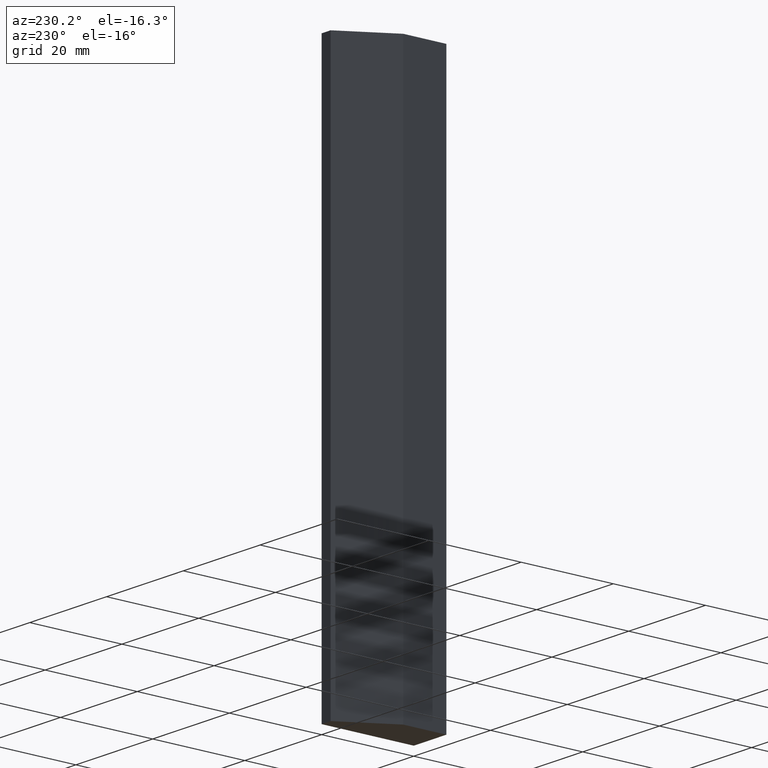
[diagram: clean part render]
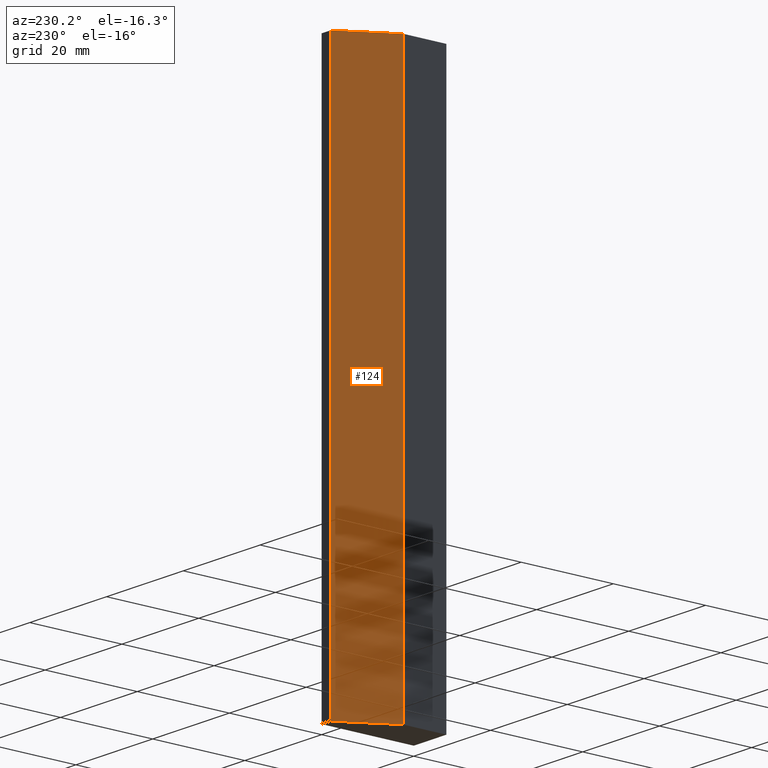
[diagram: same view with one face highlighted and labeled with its STEP entity id]
A machine part, auxiliary view. The second image highlights one B-rep face of the part: STEP entity #124.
In plain terms, the highlighted planar face has unit normal (-0.866, 0.5, 0).
Its self-contained STEP definition (entity closure, byte-faithful):
#18=FACE_OUTER_BOUND('',#25,.T.);
#25=EDGE_LOOP('',(#97,#98,#99,#100));
#32=LINE('',#199,#47);
#38=LINE('',#210,#53);
#39=LINE('',#213,#54);
#40=LINE('',#214,#55);
#47=VECTOR('',#165,10.);
#53=VECTOR('',#175,10.);
#54=VECTOR('',#178,10.);
#55=VECTOR('',#179,10.);
#62=VERTEX_POINT('',#196);
#63=VERTEX_POINT('',#198);
#66=VERTEX_POINT('',#208);
#67=VERTEX_POINT('',#212);
#72=EDGE_CURVE('',#62,#63,#32,.T.);
#78=EDGE_CURVE('',#62,#66,#38,.T.);
#79=EDGE_CURVE('',#67,#66,#39,.T.);
#80=EDGE_CURVE('',#63,#67,#40,.T.);
#97=ORIENTED_EDGE('',*,*,#78,.T.);
#98=ORIENTED_EDGE('',*,*,#79,.F.);
#99=ORIENTED_EDGE('',*,*,#80,.F.);
#100=ORIENTED_EDGE('',*,*,#72,.F.);
#117=PLANE('',#154);
#124=ADVANCED_FACE('',(#18),#117,.T.);
#154=AXIS2_PLACEMENT_3D('',#211,#176,#177);
#165=DIRECTION('',(0.5,0.866025403784439,0.));
#175=DIRECTION('',(0.,0.,1.));
#176=DIRECTION('center_axis',(-0.866025403784439,0.5,0.));
#177=DIRECTION('ref_axis',(-0.5,-0.866025403784439,0.));
#178=DIRECTION('',(-0.5,-0.866025403784439,0.));
#179=DIRECTION('',(0.,0.,1.));
#196=CARTESIAN_POINT('',(-8.5,9.36,-60.));
#198=CARTESIAN_POINT('',(-2.35699313582239,20.,-60.));
#199=CARTESIAN_POINT('',(-2.35699313582239,20.,-60.));
#208=CARTESIAN_POINT('',(-8.5,9.36,60.));
#210=CARTESIAN_POINT('',(-8.5,9.36,0.));
#211=CARTESIAN_POINT('Origin',(-2.35699313582239,20.,0.));
#212=CARTESIAN_POINT('',(-2.35699313582239,20.,60.));
#213=CARTESIAN_POINT('',(-2.35699313582239,20.,60.));
#214=CARTESIAN_POINT('',(-2.35699313582239,20.,0.));